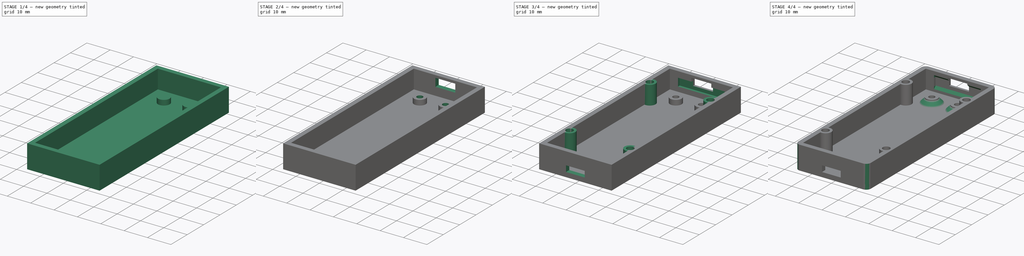
[diagram: build sequence overview — one tinted view per stage of 4, left to right]
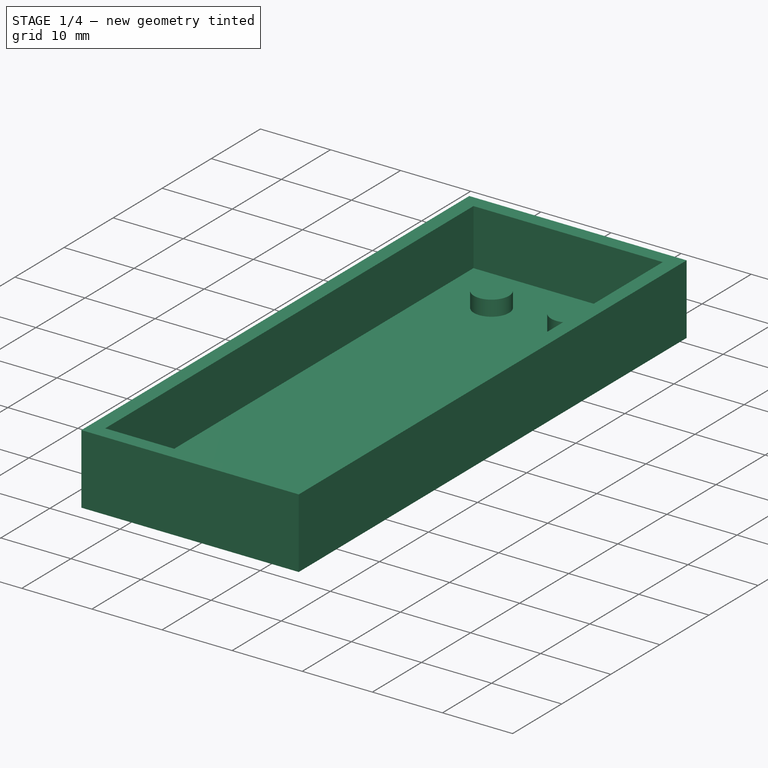
[diagram: stage 1 of 4 — iso view after this stage's code; geometry added in this stage tinted green]
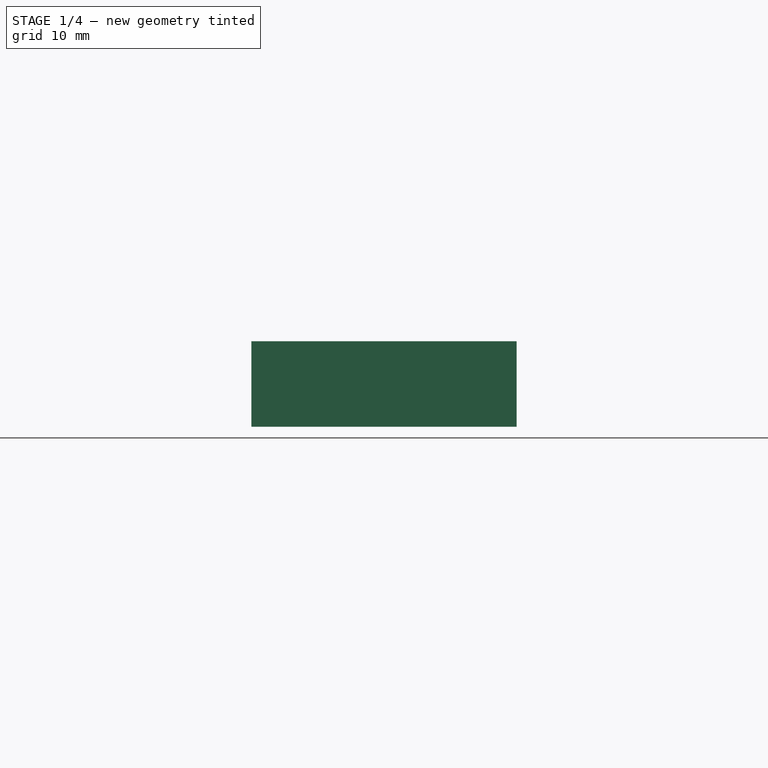
[diagram: stage 1 of 4 — front view after this stage's code; geometry added in this stage tinted green]
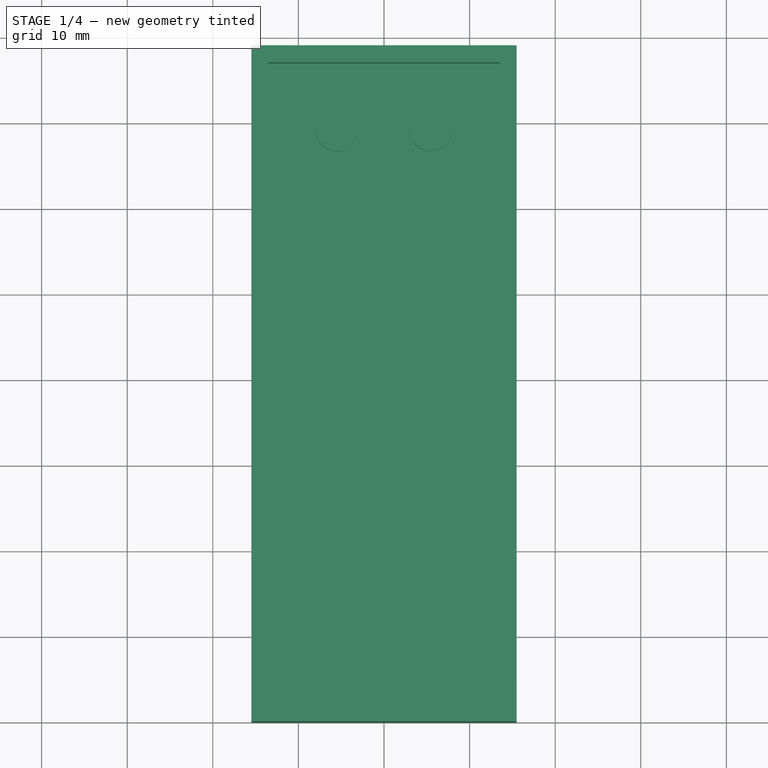
[diagram: stage 1 of 4 — top view after this stage's code; geometry added in this stage tinted green]
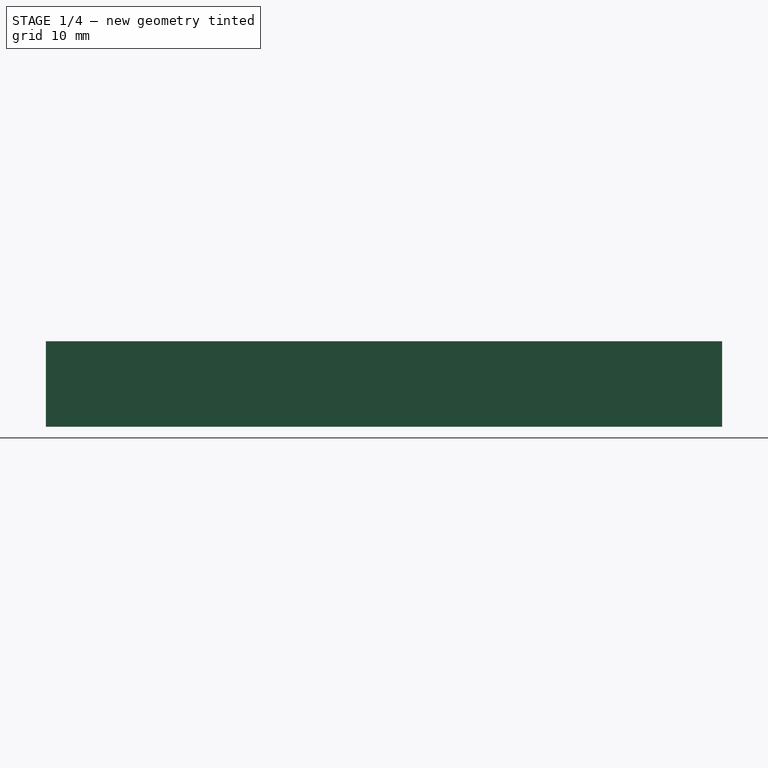
[diagram: stage 1 of 4 — right view after this stage's code; geometry added in this stage tinted green]
FCSTD DOCUMENT  (FreeCAD 0.18R13661 (Git))
Label: Bottom_PL2303
License: All rights reserved
LicenseURL: http://en.wikipedia.org/wiki/All_rights_reserved
objects: Sketcher::SketchObject×10, PartDesign::Pocket×6, PartDesign::Plane×5, PartDesign::Pad×4, PartDesign::Chamfer×2, PartDesign::Fillet×1, PartDesign::Body×1
note: 39 computed .brp shape members not serialized (recipe doc carries the construction recipe); baked Part::Feature solids carry a one-line shape summary decoded from their .brp

FEATURE [Sketcher::SketchObject] Sketch  label="BaseSketch"
  MapMode = 5
  Support = -> [XY_Plane]
  sketch-geometry (14):
    g0: LineSegment StartX=0 StartY=0 StartZ=0 EndX=15.5 EndY=0 EndZ=0
    g1: LineSegment StartX=0 StartY=0 StartZ=0 EndX=-15.5 EndY=0 EndZ=0
    g2: LineSegment StartX=-15.5 StartY=0 StartZ=0 EndX=-15.5 EndY=39.5 EndZ=0
    g3: LineSegment StartX=-15.5 StartY=39.5 StartZ=0 EndX=-15.5 EndY=79 EndZ=0
    g4: LineSegment StartX=-15.5 StartY=79 StartZ=0 EndX=0 EndY=79 EndZ=0
    g5: LineSegment StartX=0 StartY=79 StartZ=0 EndX=15.5 EndY=79 EndZ=0
    g6: LineSegment StartX=15.5 StartY=79 StartZ=0 EndX=15.5 EndY=39.5 EndZ=0
    g7: LineSegment StartX=15.5 StartY=39.5 StartZ=0 EndX=15.5 EndY=0 EndZ=0
    g8: LineSegment StartX=-13.5 StartY=77 StartZ=0 EndX=13.5 EndY=77 EndZ=0
    g9: LineSegment StartX=13.5 StartY=77 StartZ=0 EndX=13.5 EndY=2 EndZ=0
    g10: LineSegment StartX=13.5 StartY=2 StartZ=0 EndX=-13.5 EndY=2 EndZ=0
    g11: LineSegment StartX=-13.5 StartY=2 StartZ=0 EndX=-13.5 EndY=77 EndZ=0
    g12: LineSegment [constr] StartX=-13.5 StartY=77 StartZ=0 EndX=-15.5 EndY=77 EndZ=0
    g13: LineSegment [constr] StartX=13.5 StartY=77 StartZ=0 EndX=15.5 EndY=77 EndZ=0
  constraints (41):
    c: Coincident(g0,g-1)
    c: Coincident(g1,g-1)
    c: Equal(g1,g0)
    c: Parallel(g0,g1)
    c: Horizontal(g0)
    c: Coincident(g2,g1)
    c: Perpendicular(g1,g2)
    c: Coincident(g3,g2)
    c: Equal(g3,g2)
    c: Parallel(g3,g2)
    c: Coincident(g4,g3)
    c: Coincident(g5,g4)
    c: Coincident(g6,g5)
    c: Coincident(g7,g6)
    c: Coincident(g7,g0)
    c: Equal(g4,g5)
    c: Equal(g7,g6)
    c: Parallel(g4,g5)
    c: Perpendicular(g3,g4)
    c: Parallel(g6,g7)
    c: Perpendicular(g6,g5)
    c: Coincident(g8,g9)
    c: Coincident(g9,g10)
    c: Coincident(g10,g11)
    c: Coincident(g11,g8)
    c: Parallel(g11,g3)
    c: Parallel(g8,g4)
    c: Parallel(g9,g6)
    c: Parallel(g1,g10)
    c: Coincident(g12,g8)
    c: PointOnObject(g12,g3)
    c: Coincident(g13,g8)
    c: PointOnObject(g13,g6)
    c: Distance(g12) = 2
    c: Distance(g3,g12) = 2
    c: Parallel(g12,g8)
    c: Equal(g12,g13)
    c: Parallel(g12,g13)
    c: Distance(g10) = 27
    c: Distance(g11) = 75
    c: Distance(g10,g1) = 2
FEATURE [PartDesign::Pad] Pad  label="BasePad"
  Length = 8
  Length2 = 100
  Profile = -> Sketch
  Type = 0
FEATURE [Sketcher::SketchObject] Sketch001  label="BottomSketch"
  ExternalGeometry = -> [Pad]
  MapMode = 5
  Support = -> [XY_Plane]
  sketch-geometry (8):
    g0: LineSegment StartX=-15.5 StartY=79 StartZ=0 EndX=-15.5 EndY=39.5 EndZ=0
    g1: LineSegment StartX=-15.5 StartY=39.5 StartZ=0 EndX=-15.5 EndY=0 EndZ=0
    g2: LineSegment StartX=-15.5 StartY=0 StartZ=0 EndX=0 EndY=0 EndZ=0
    g3: LineSegment StartX=0 StartY=0 StartZ=0 EndX=15.5 EndY=0 EndZ=0
    g4: LineSegment StartX=15.5 StartY=0 StartZ=0 EndX=15.5 EndY=39.5 EndZ=0
    g5: LineSegment StartX=15.5 StartY=39.5 StartZ=0 EndX=15.5 EndY=79 EndZ=0
    g6: LineSegment StartX=15.5 StartY=79 StartZ=0 EndX=0 EndY=79 EndZ=0
    g7: LineSegment StartX=0 StartY=79 StartZ=0 EndX=-15.5 EndY=79 EndZ=0
  constraints (16):
    c: Coincident(g0,g-10)
    c: Coincident(g0,g-4)
    c: Coincident(g1,g0)
    c: Coincident(g1,g-5)
    c: Coincident(g2,g1)
    c: Coincident(g2,g-1)
    c: Coincident(g3,g-1)
    c: Coincident(g3,g-7)
    c: Coincident(g4,g3)
    c: Coincident(g4,g-8)
    c: Coincident(g5,g4)
    c: Coincident(g5,g-9)
    c: Coincident(g6,g5)
    c: Coincident(g6,g-10)
    c: Coincident(g7,g6)
    c: Coincident(g7,g0)
FEATURE [PartDesign::Pad] Pad001  label="BottomPad"
  BaseFeature = -> Pad
  Length = 2
  Length2 = 100
  Profile = -> Sketch001
  Reversed = true
  Type = 0
FEATURE [Sketcher::SketchObject] Sketch004  label="ScrewsHubSketch"
  ExternalGeometry = -> [Pad]
  MapMode = 5
  Support = -> [XY_Plane]
  sketch-geometry (7):
    g0: LineSegment [constr] StartX=-13.5 StartY=77 StartZ=0 EndX=-5.5 EndY=77 EndZ=0
    g1: LineSegment [constr] StartX=-5.5 StartY=77 StartZ=0 EndX=5.5 EndY=77 EndZ=0
    g2: LineSegment [constr] StartX=5.5 StartY=77 StartZ=0 EndX=13.5 EndY=77 EndZ=0
    g3: LineSegment [constr] StartX=-5.5 StartY=77 StartZ=0 EndX=-5.5 EndY=69.25 EndZ=0
    g4: LineSegment [constr] StartX=5.5 StartY=77 StartZ=0 EndX=5.5 EndY=69.25 EndZ=0
    g5: Circle CenterX=-5.5 CenterY=69.25 CenterZ=0 NormalX=0 NormalY=0 NormalZ=1 AngleXU=0 Radius=2.5
    g6: Circle CenterX=5.5 CenterY=69.25 CenterZ=0 NormalX=0 NormalY=0 NormalZ=1 AngleXU=0 Radius=2.5
  constraints (18):
    c: Coincident(g0,g-3)
    c: Coincident(g1,g0)
    c: Coincident(g2,g1)
    c: Coincident(g2,g-3)
    c: Equal(g0,g2)
    c: PointOnObject(g0,g-3)
    c: PointOnObject(g1,g-3)
    c: Distance(g1) = 11
    c: Coincident(g3,g0)
    c: Coincident(g4,g1)
    c: Distance(g3) = 7.75
    c: Coincident(g5,g3)
    c: Coincident(g6,g4)
    c: Radius(g5) = 2.5
    c: Perpendicular(g1,g3)
    c: Perpendicular(g4,g1)
    c: Equal(g4,g3)
    c: Equal(g5,g6)
FEATURE [PartDesign::Pad] Pad002  label="ScrewsHubPad"
  BaseFeature = -> Pad001
  Length = 2.2
  Length2 = 100
  Profile = -> Sketch004
  Type = 0
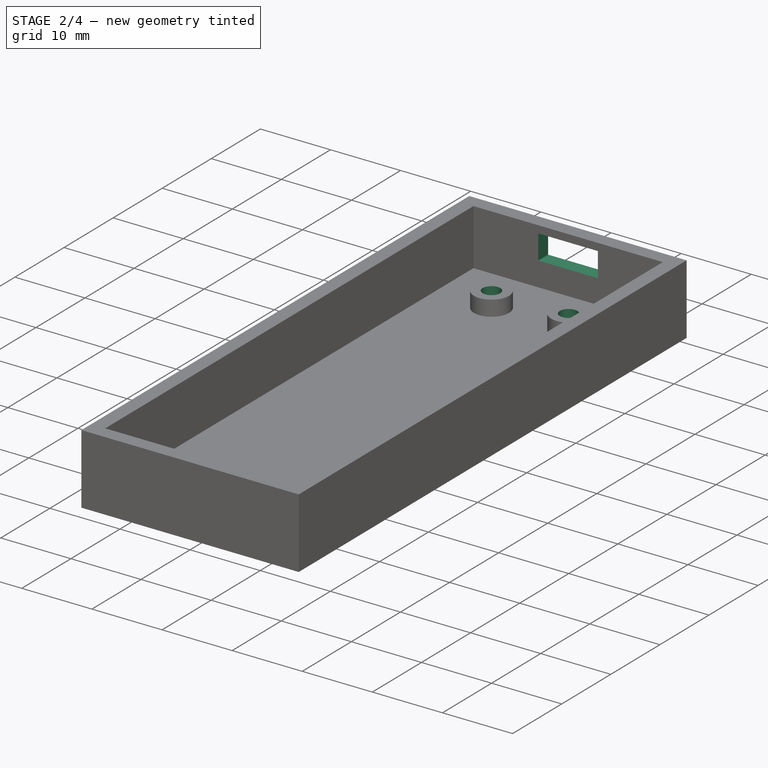
[diagram: stage 2 of 4 — iso view after this stage's code; geometry added in this stage tinted green]
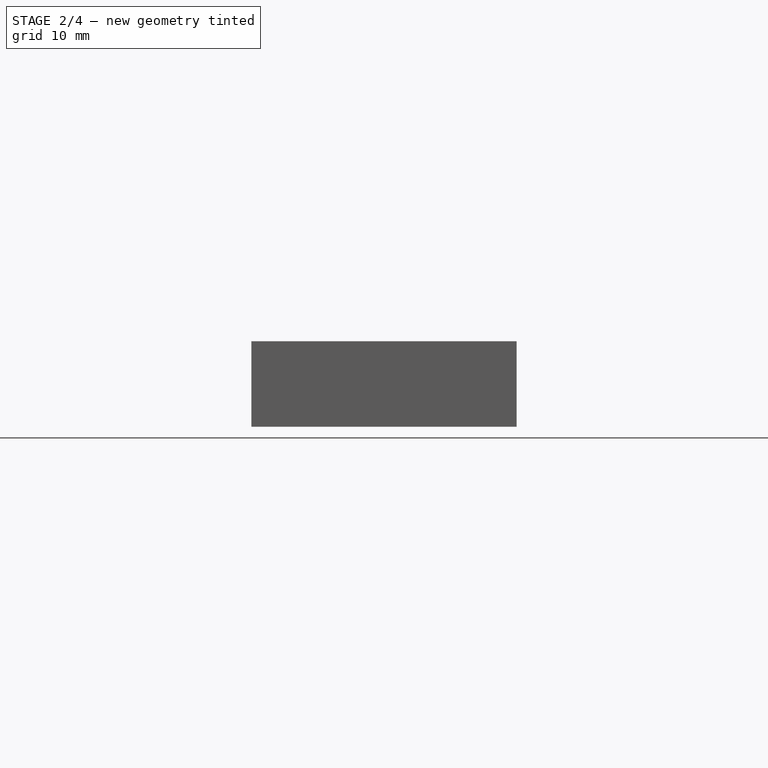
[diagram: stage 2 of 4 — front view after this stage's code; geometry added in this stage tinted green]
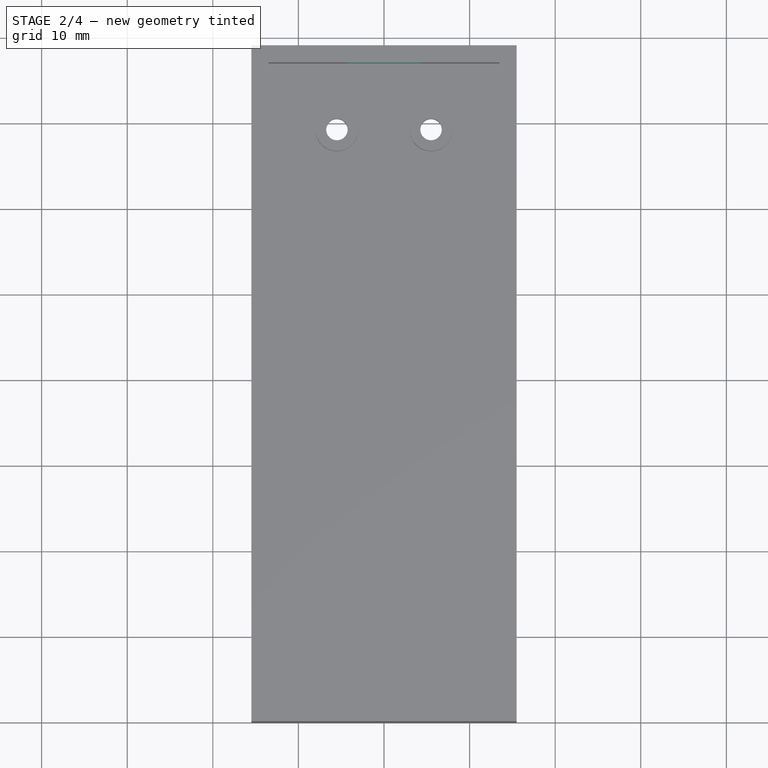
[diagram: stage 2 of 4 — top view after this stage's code; geometry added in this stage tinted green]
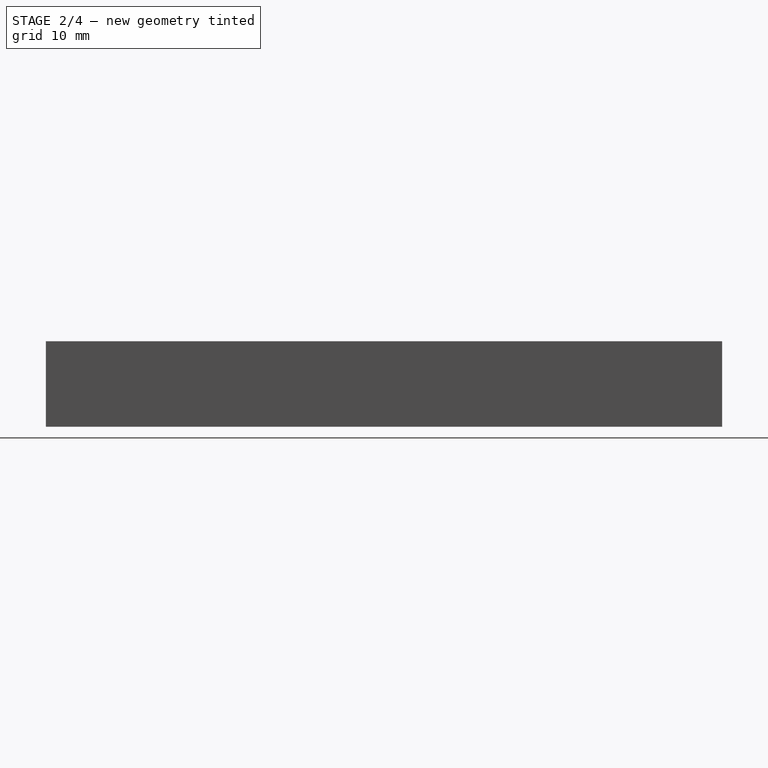
[diagram: stage 2 of 4 — right view after this stage's code; geometry added in this stage tinted green]
FEATURE [PartDesign::Plane] DatumPlane  label="ScrewsHolePlane"
  MapMode = 6
  Placement = pos=(-3,69.25,2.2) rot=(0,0,1;3.14159rad)
  Support = -> [Pad002]
FEATURE [Sketcher::SketchObject] Sketch005  label="ScrewsHoleSketch"
  ExternalGeometry = -> [Pad002]
  MapMode = 5
  Placement = pos=(-3,69.25,2.2) rot=(0,0,1;3.14159rad)
  Support = -> [DatumPlane]
  sketch-geometry (2):
    g0: Circle CenterX=2.5 CenterY=0 CenterZ=0 NormalX=0 NormalY=0 NormalZ=1 AngleXU=0 Radius=1.25
    g1: Circle CenterX=-8.5 CenterY=0 CenterZ=0 NormalX=0 NormalY=0 NormalZ=1 AngleXU=0 Radius=1.25
  constraints (4):
    c: Coincident(g0,g-3)
    c: Coincident(g1,g-4)
    c: Radius(g1) = 1.25
    c: Equal(g0,g1)
FEATURE [PartDesign::Pocket] Pocket  label="ScrewsHolePocket"
  BaseFeature = -> Pad002
  Length = 5
  Length2 = 100
  Profile = -> Sketch005
  Type = 1
FEATURE [PartDesign::Plane] DatumPlane001  label="ScrewHeadsHolePlane"
  MapMode = 6
  Placement = pos=(0,79,-2) rot=(1,0,0;3.14159rad)
  Support = -> [Pocket]
FEATURE [Sketcher::SketchObject] Sketch006  label="ScrewHeadsHoleSketch"
  ExternalGeometry = -> [Pocket]
  MapMode = 5
  Placement = pos=(0,79,-2) rot=(1,0,0;3.14159rad)
  Support = -> [DatumPlane001]
  sketch-geometry (2):
    g0: Circle CenterX=-5.5 CenterY=9.75 CenterZ=0 NormalX=0 NormalY=0 NormalZ=1 AngleXU=0 Radius=1.8
    g1: Circle CenterX=5.5 CenterY=9.75 CenterZ=0 NormalX=0 NormalY=0 NormalZ=1 AngleXU=0 Radius=1.8
  constraints (4):
    c: Coincident(g0,g-3)
    c: Coincident(g1,g-4)
    c: Radius(g0) = 1.8
    c: Equal(g1,g0)
FEATURE [PartDesign::Pocket] Pocket001  label="ScrewHeadsHolePocket"
  BaseFeature = -> Pocket
  Length = 1.5
  Length2 = 100
  Profile = -> Sketch006
  Type = 0
FEATURE [PartDesign::Plane] DatumPlane002  label="MicroUsbHolePlane"
  AttachmentOffset = pos=(0,0,1.25) rot=(0,0,1;0rad)
  MapMode = 45
  Placement = pos=(-4e-12,69.25,3.45) rot=(0,0,1;1.5708rad)
  Support = -> [Pocket001]
FEATURE [Sketcher::SketchObject] Sketch007  label="MicroUsbHoleSketch"
  ExternalGeometry = -> [Pocket001]
  MapMode = 5
  Placement = pos=(-4e-12,69.25,3.45) rot=(0,0,1;1.5708rad)
  Support = -> [DatumPlane002]
  sketch-geometry (5):
    g0: LineSegment StartX=9.75 StartY=3.1e-11 StartZ=0 EndX=9.75 EndY=4.25 EndZ=0
    g1: LineSegment StartX=9.75 StartY=3.1e-11 StartZ=0 EndX=9.75 EndY=-4.25 EndZ=0
    g2: LineSegment StartX=9.75 StartY=4.25 StartZ=0 EndX=7.75 EndY=4.25 EndZ=0
    g3: LineSegment StartX=9.75 StartY=-4.25 StartZ=0 EndX=7.75 EndY=-4.25 EndZ=0
    g4: LineSegment StartX=7.75 StartY=4.25 StartZ=0 EndX=7.75 EndY=-4.25 EndZ=0
  constraints (14):
    c: Coincident(g0,g-4)
    c: Coincident(g1,g0)
    c: PointOnObject(g1,g-4)
    c: PointOnObject(g0,g-3)
    c: Equal(g0,g1)
    c: Distance(g0,g1) = 8.5
    c: Coincident(g2,g0)
    c: PointOnObject(g2,g-5)
    c: Coincident(g3,g1)
    c: PointOnObject(g3,g-5)
    c: Coincident(g4,g2)
    c: Coincident(g4,g3)
    c: Parallel(g3,g2)
    c: Perpendicular(g0,g2)
FEATURE [PartDesign::Pocket] Pocket002  label="MicroUsbHolePocket"
  BaseFeature = -> Pocket001
  Length = 3.5
  Length2 = 100
  Profile = -> Sketch007
  Reversed = true
  Type = 0
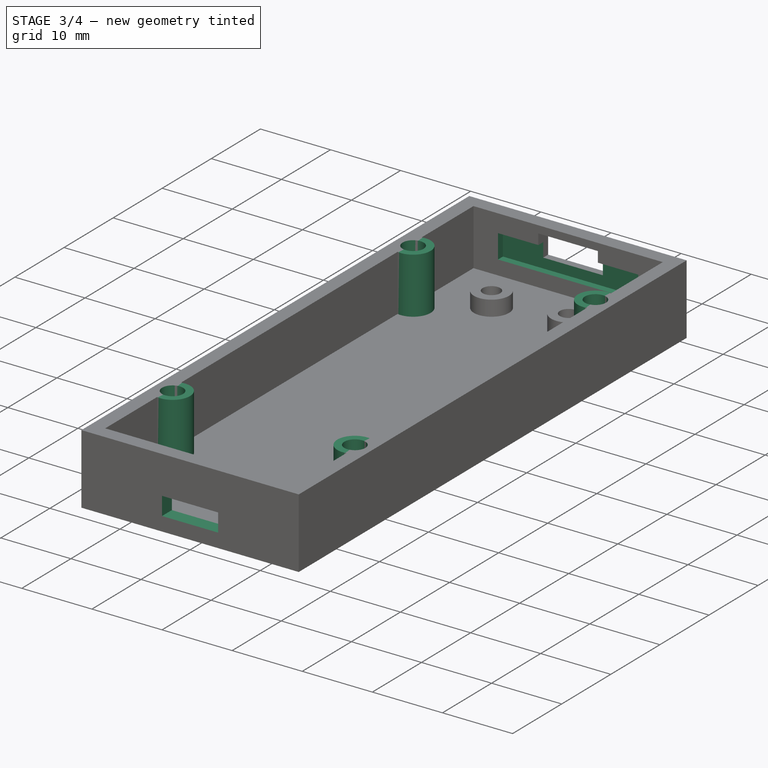
[diagram: stage 3 of 4 — iso view after this stage's code; geometry added in this stage tinted green]
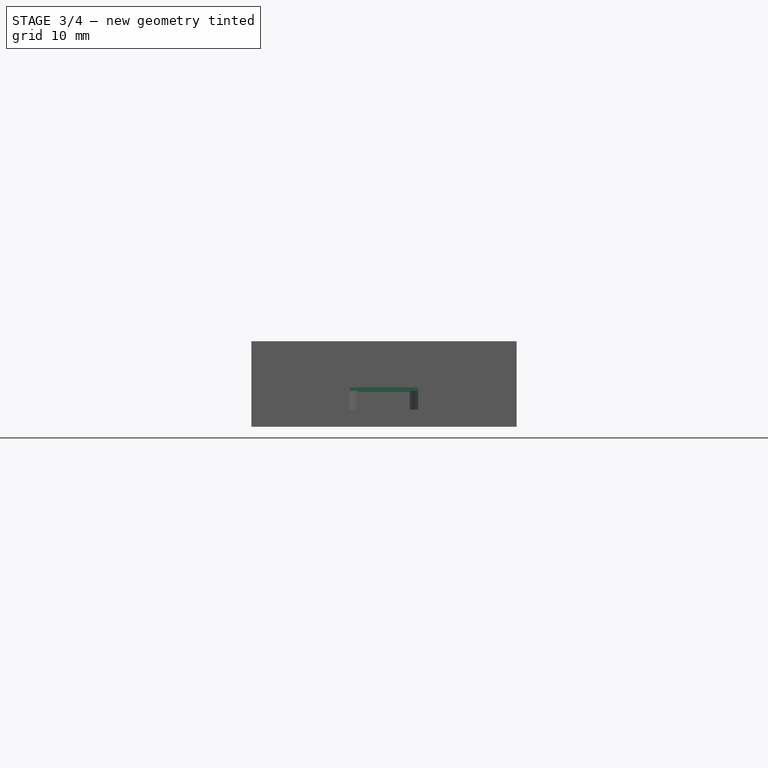
[diagram: stage 3 of 4 — front view after this stage's code; geometry added in this stage tinted green]
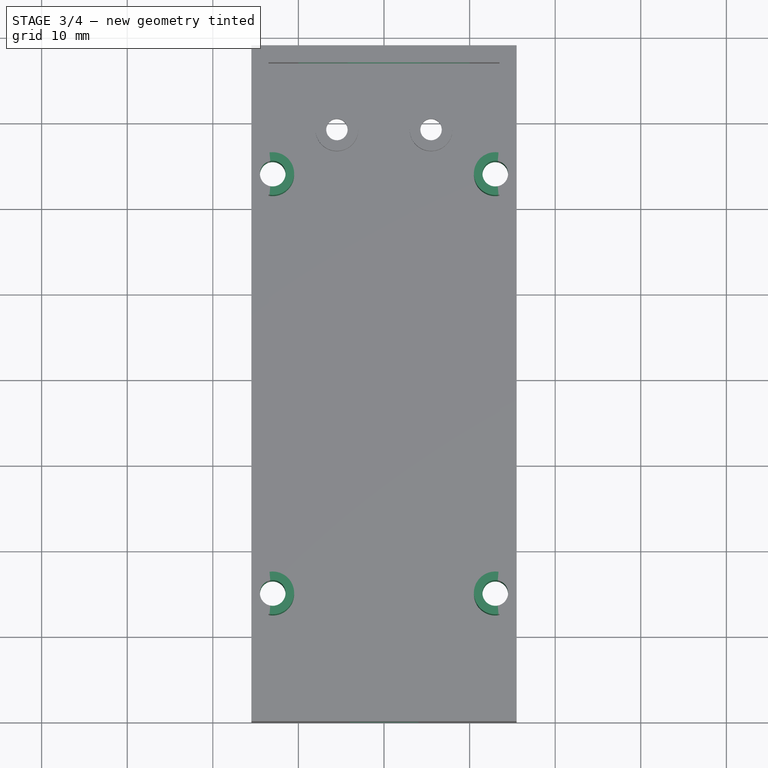
[diagram: stage 3 of 4 — top view after this stage's code; geometry added in this stage tinted green]
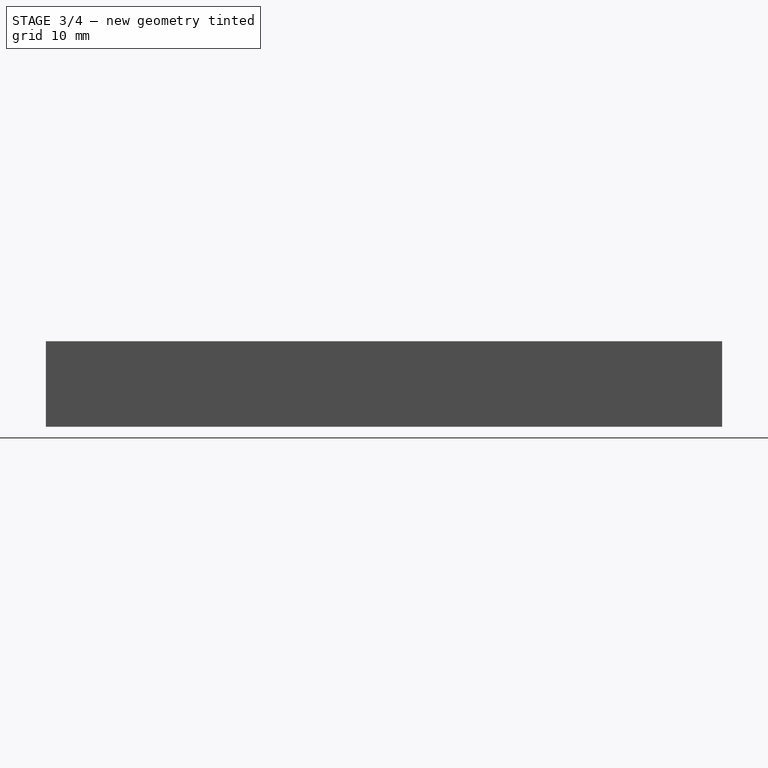
[diagram: stage 3 of 4 — right view after this stage's code; geometry added in this stage tinted green]
FEATURE [PartDesign::Plane] DatumPlane003  label="CaseScrewsHubPlane"
  MapMode = 6
  Placement = pos=(0,79,8) rot=(0,0,1;3.14159rad)
  Support = -> [Pocket002]
FEATURE [Sketcher::SketchObject] Sketch008  label="CaseScrewsHubSketch"
  ExternalGeometry = -> [Pocket002]
  MapMode = 5
  Placement = pos=(0,79,8) rot=(0,0,1;3.14159rad)
  Support = -> [DatumPlane003]
  sketch-geometry (8):
    g0: LineSegment [constr] StartX=-15.5 StartY=15 StartZ=0 EndX=-13 EndY=15 EndZ=0
    g1: Circle CenterX=-13 CenterY=15 CenterZ=0 NormalX=0 NormalY=0 NormalZ=1 AngleXU=0 Radius=2.5
    g2: LineSegment [constr] StartX=15.5 StartY=15 StartZ=0 EndX=13 EndY=15 EndZ=0
    g3: Circle CenterX=13 CenterY=15 CenterZ=0 NormalX=0 NormalY=0 NormalZ=1 AngleXU=0 Radius=2.5
    g4: LineSegment [constr] StartX=-15.5 StartY=64 StartZ=0 EndX=-13 EndY=64 EndZ=0
    g5: LineSegment [constr] StartX=15.5 StartY=64 StartZ=0 EndX=13 EndY=64 EndZ=0
    g6: Circle CenterX=-13 CenterY=64 CenterZ=0 NormalX=0 NormalY=0 NormalZ=1 AngleXU=0 Radius=2.5
    g7: Circle CenterX=13 CenterY=64 CenterZ=0 NormalX=0 NormalY=0 NormalZ=1 AngleXU=0 Radius=2.5
  constraints (24):
    c: Distance(g0) = 2.5
    c: Perpendicular(g-6,g0)
    c: Coincident(g1,g0)
    c: Radius(g1) = 2.5
    c: Equal(g2,g0)
    c: Parallel(g2,g0)
    c: Coincident(g3,g2)
    c: Equal(g3,g1)
    c: PointOnObject(g4,g-6)
    c: PointOnObject(g5,g-3)
    c: Parallel(g4,g5)
    c: Equal(g4,g5)
    c: Perpendicular(g-6,g4)
    c: Distance(g4,g-6) = 15
    c: Distance(g5,g-3) = 15
    c: Distance(g4) = 2.5
    c: Coincident(g6,g4)
    c: Coincident(g7,g5)
    c: Equal(g6,g7)
    c: Radius(g6) = 2.5
    c: PointOnObject(g0,g-5)
    c: PointOnObject(g2,g-4)
    c: Distance(g0,g-5) = 15
    c: Distance(g2,g-4) = 15
FEATURE [PartDesign::Pad] Pad003  label="CaseScrewsHubPad"
  BaseFeature = -> Pocket002
  Length = 10
  Length2 = 100
  Profile = -> Sketch008
  Reversed = true
  Type = 1
FEATURE [Sketcher::SketchObject] Sketch009  label="CaseScrewsHoleSketch"
  ExternalGeometry = -> [Pad003]
  MapMode = 5
  Placement = pos=(0,79,8) rot=(0,0,1;3.14159rad)
  Support = -> [DatumPlane003]
  sketch-geometry (8):
    g0: LineSegment [constr] StartX=-15.5 StartY=15 StartZ=0 EndX=-13 EndY=15 EndZ=0
    g1: LineSegment [constr] StartX=15.5 StartY=15 StartZ=0 EndX=13 EndY=15 EndZ=0
    g2: Circle CenterX=-13 CenterY=15 CenterZ=0 NormalX=0 NormalY=0 NormalZ=1 AngleXU=0 Radius=1.5
    g3: Circle CenterX=13 CenterY=15 CenterZ=0 NormalX=0 NormalY=0 NormalZ=1 AngleXU=0 Radius=1.5
    g4: LineSegment [constr] StartX=-15.5 StartY=64 StartZ=0 EndX=-13 EndY=64 EndZ=0
    g5: LineSegment [constr] StartX=15.5 StartY=64 StartZ=0 EndX=13 EndY=64 EndZ=0
    g6: Circle CenterX=-13 CenterY=64 CenterZ=0 NormalX=0 NormalY=0 NormalZ=1 AngleXU=0 Radius=1.5
    g7: Circle CenterX=13 CenterY=64 CenterZ=0 NormalX=0 NormalY=0 NormalZ=1 AngleXU=0 Radius=1.5
  constraints (24):
    c: Equal(g0,g1)
    c: Perpendicular(g-3,g0)
    c: Parallel(g0,g1)
    c: Distance(g0) = 2.5
    c: Coincident(g2,g0)
    c: Coincident(g3,g1)
    c: Equal(g2,g3)
    c: Radius(g2) = 1.5
    c: PointOnObject(g0,g-5)
    c: PointOnObject(g1,g-6)
    c: Distance(g0,g-5) = 15
    c: Distance(g1,g-6) = 15
    c: PointOnObject(g4,g-3)
    c: PointOnObject(g5,g-4)
    c: Equal(g4,g5)
    c: Parallel(g4,g5)
    c: Perpendicular(g-3,g4)
    c: Distance(g4) = 2.5
    c: Distance(g4,g-3) = 15
    c: Distance(g5,g-4) = 15
    c: Coincident(g6,g4)
    c: Coincident(g7,g5)
    c: Equal(g7,g6)
    c: Radius(g6) = 1.5
FEATURE [PartDesign::Pocket] Pocket003  label="CaseScrewsHolePocket"
  BaseFeature = -> Pad003
  Length = 13
  Length2 = 100
  Profile = -> Sketch009
  Type = 0
FEATURE [Sketcher::SketchObject] Sketch010  label="FrontNotchSketch"
  ExternalGeometry = -> [Pocket002]
  MapMode = 5
  Placement = pos=(-4e-12,69.25,3.45) rot=(0,0,1;1.5708rad)
  Support = -> [DatumPlane002]
  sketch-geometry (6):
    g0: LineSegment [constr] StartX=9.75 StartY=3.1e-11 StartZ=0 EndX=7.75 EndY=2.4e-11 EndZ=0
    g1: LineSegment StartX=7.75 StartY=2.4e-11 StartZ=0 EndX=7.75 EndY=10 EndZ=0
    g2: LineSegment StartX=7.75 StartY=2.4e-11 StartZ=0 EndX=7.75 EndY=-10 EndZ=0
    g3: LineSegment StartX=7.75 StartY=10 StartZ=0 EndX=8.75 EndY=10 EndZ=0
    g4: LineSegment StartX=7.75 StartY=-10 StartZ=0 EndX=8.75 EndY=-10 EndZ=0
    g5: LineSegment StartX=8.75 StartY=10 StartZ=0 EndX=8.75 EndY=-10 EndZ=0
  constraints (17):
    c: Coincident(g0,g-4)
    c: PointOnObject(g0,g-5)
    c: Perpendicular(g-5,g0)
    c: Coincident(g1,g0)
    c: PointOnObject(g1,g-5)
    c: Coincident(g2,g0)
    c: PointOnObject(g2,g-5)
    c: Equal(g2,g1)
    c: Distance(g1,g2) = 20
    c: Coincident(g3,g1)
    c: Coincident(g4,g2)
    c: Coincident(g5,g3)
    c: Coincident(g5,g4)
    c: Parallel(g1,g5)
    c: Parallel(g3,g4)
    c: Perpendicular(g1,g3)
    c: Distance(g3) = 1
FEATURE [PartDesign::Pocket] Pocket004  label="FrontNotchPocket"
  BaseFeature = -> Pocket003
  Length = 1.4
  Length2 = 2
  Profile = -> Sketch010
  Type = 4
FEATURE [PartDesign::Plane] DatumPlane004  label="VCCSwitchPlane"
  MapMode = 6
  Placement = pos=(0,0,0) rot=(1,0,0;1.5708rad)
  Support = -> [Pocket004]
FEATURE [Sketcher::SketchObject] Sketch011  label="VCCSwitchSketch"
  MapMode = 5
  Placement = pos=(0,0,0) rot=(1,0,0;1.5708rad)
  Support = -> [DatumPlane004]
  sketch-geometry (5):
    g0: LineSegment StartX=0 StartY=0 StartZ=0 EndX=4 EndY=0 EndZ=0
    g1: LineSegment StartX=0 StartY=0 StartZ=0 EndX=-4 EndY=0 EndZ=0
    g2: LineSegment StartX=4 StartY=0 StartZ=0 EndX=4 EndY=2.6 EndZ=0
    g3: LineSegment StartX=4 StartY=2.6 StartZ=0 EndX=-4 EndY=2.6 EndZ=0
    g4: LineSegment StartX=-4 StartY=2.6 StartZ=0 EndX=-4 EndY=0 EndZ=0
  constraints (14):
    c: Coincident(g0,g-1)
    c: PointOnObject(g0,g-1)
    c: Coincident(g1,g-1)
    c: PointOnObject(g1,g-1)
    c: Symmetric(g0,g1,g-2)
    c: Distance(g0,g1) = 8
    c: Coincident(g2,g0)
    c: Coincident(g3,g2)
    c: Coincident(g4,g3)
    c: Coincident(g4,g1)
    c: Vertical(g2)
    c: Vertical(g4)
    c: Horizontal(g3)
    c: Distance(g2) = 2.6
FEATURE [PartDesign::Pocket] Pocket005  label="VCCSwitchPocket"
  BaseFeature = -> Pocket004
  Length = 5
  Length2 = 100
  Profile = -> Sketch011
  Type = 2
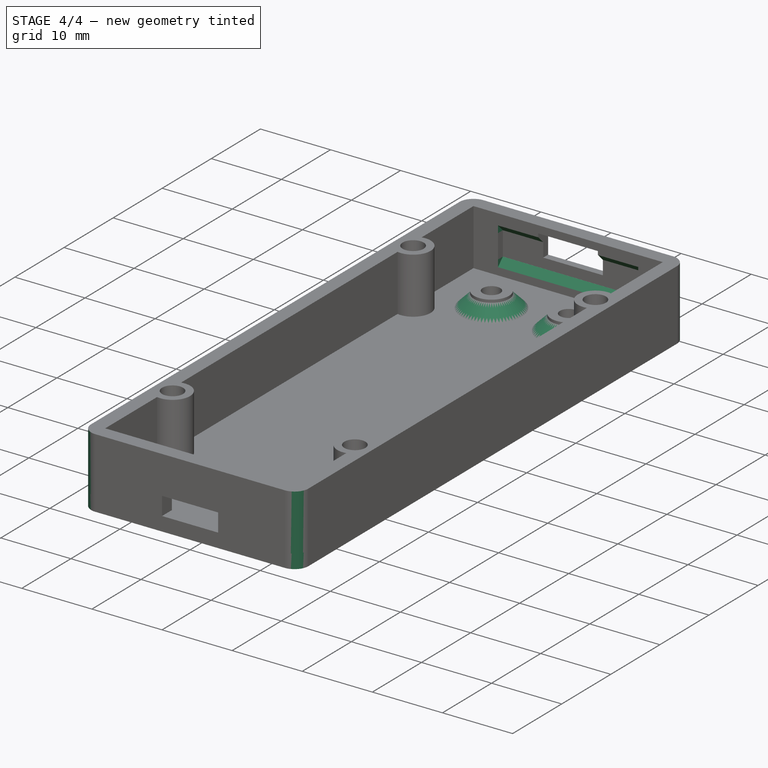
[diagram: stage 4 of 4 — iso view after this stage's code; geometry added in this stage tinted green]
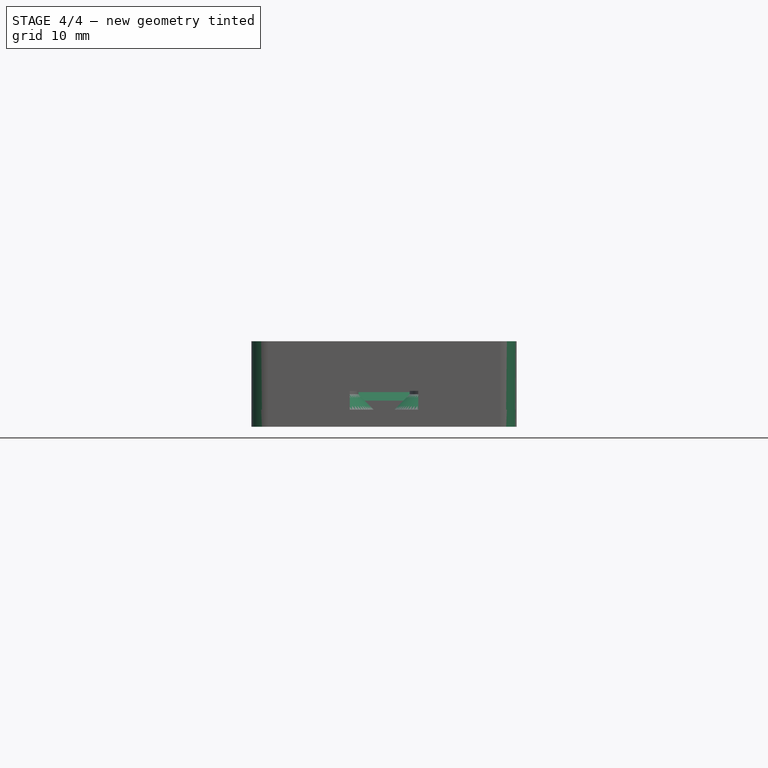
[diagram: stage 4 of 4 — front view after this stage's code; geometry added in this stage tinted green]
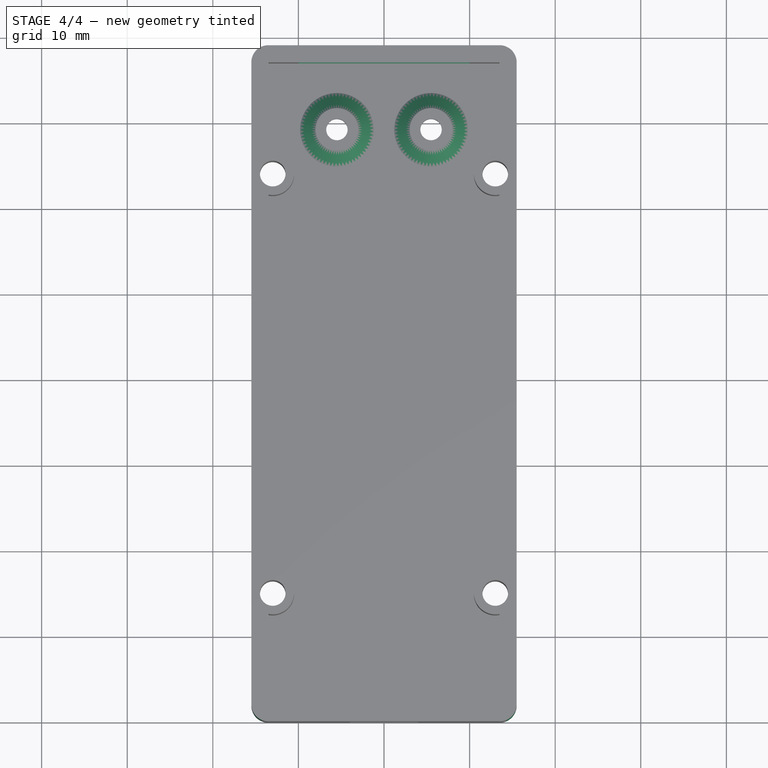
[diagram: stage 4 of 4 — top view after this stage's code; geometry added in this stage tinted green]
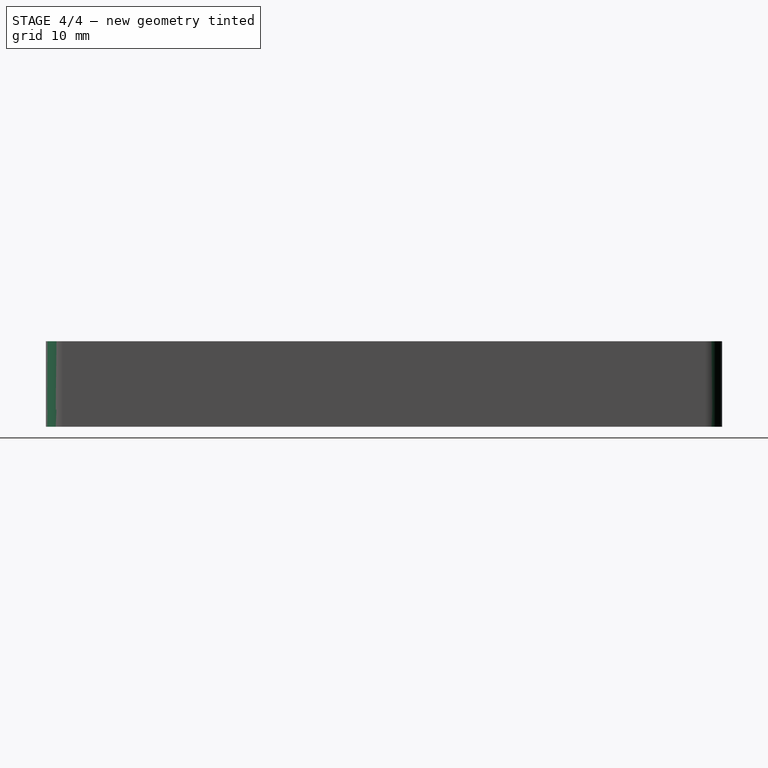
[diagram: stage 4 of 4 — right view after this stage's code; geometry added in this stage tinted green]
FEATURE [PartDesign::Fillet] Fillet  label="CaseFillet"
  Base = -> Pocket005 [Edge27,Edge36,Edge146,Edge152]
  BaseFeature = -> Pocket005
  Radius = 2
FEATURE [PartDesign::Chamfer] Chamfer001  label="MicroUsbHoleChamfer"
  Base = -> Fillet [Edge168,Edge164,Edge169]
  BaseFeature = -> Fillet
  Size = 0.99
FEATURE [PartDesign::Chamfer] Chamfer  label="ScrewsHoleChamfer"
  Base = -> Chamfer001 [Edge66,Edge65]
  BaseFeature = -> Chamfer001
  Size = 1.8
FEATURE [PartDesign::Body] Body  label="CaseBody"
  Group = -> [Sketch,Pad,Sketch001,Pad001,Sketch004,Pad002,DatumPlane,Sketch005,Pocket,DatumPlane001,Sketch006,Pocket001,DatumPlane002,Sketch007,Pocket002,DatumPlane003,Sketch008,Pad003,Sketch009,Pocket003,Sketch010,Pocket004,DatumPlane004,Sketch011,Pocket005,Fillet,Chamfer001,Chamfer]
  Origin = -> Origin
  Tip = -> Pocket005
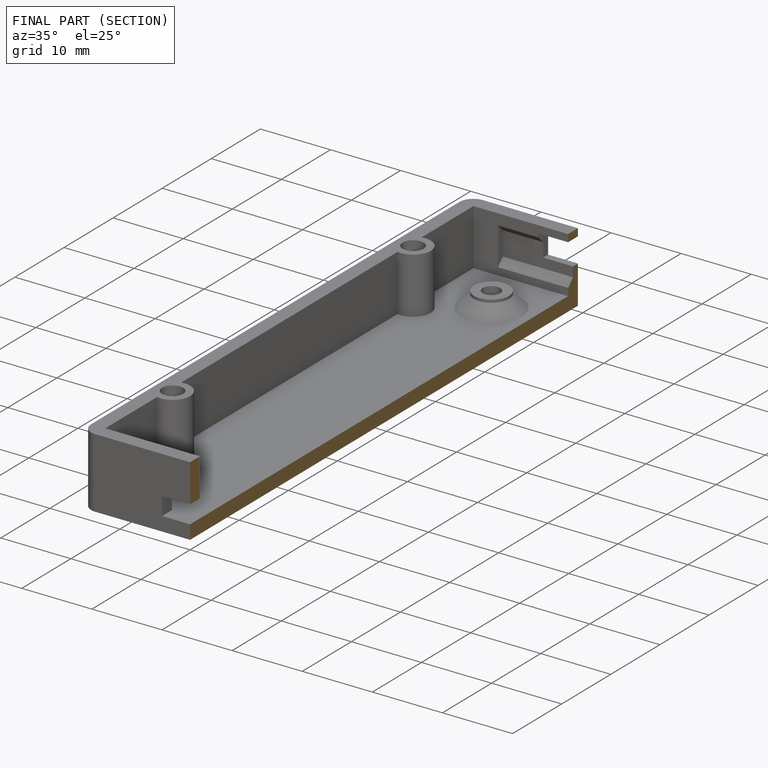
[diagram: finished part — half-section view (interior)]
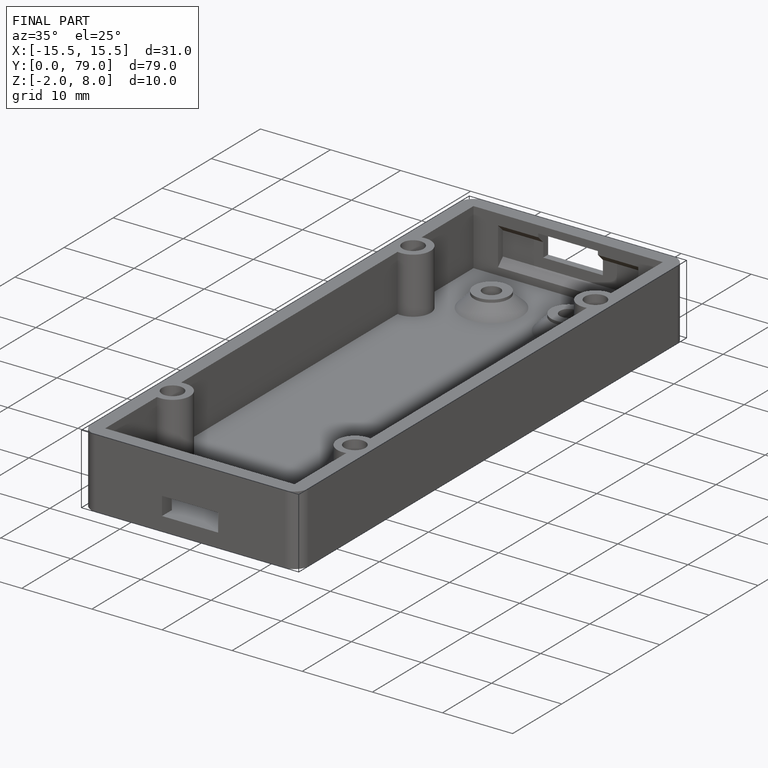
[diagram: finished part — iso view with bounding-box wireframe]
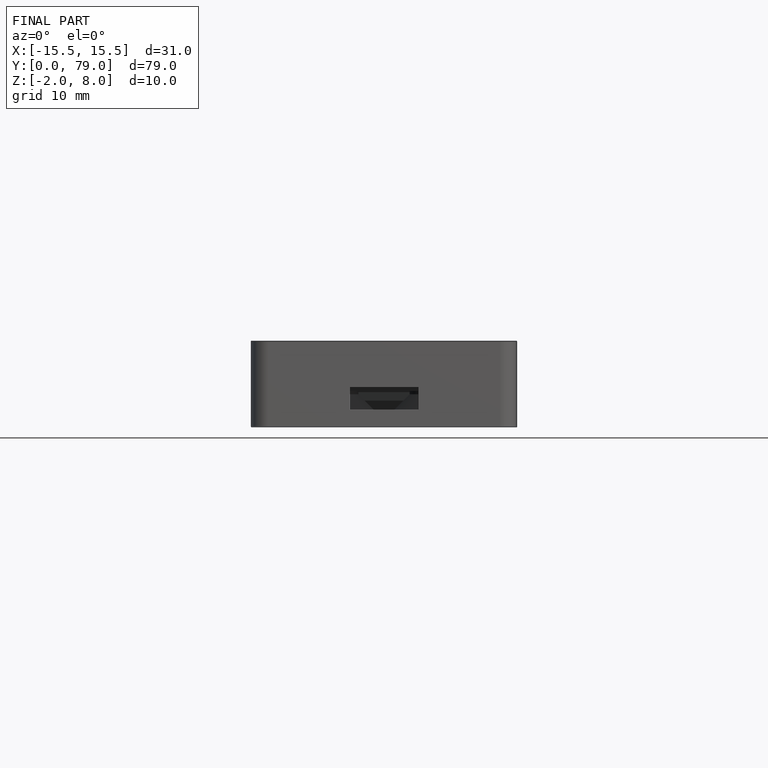
[diagram: finished part — front view with bounding-box wireframe]
